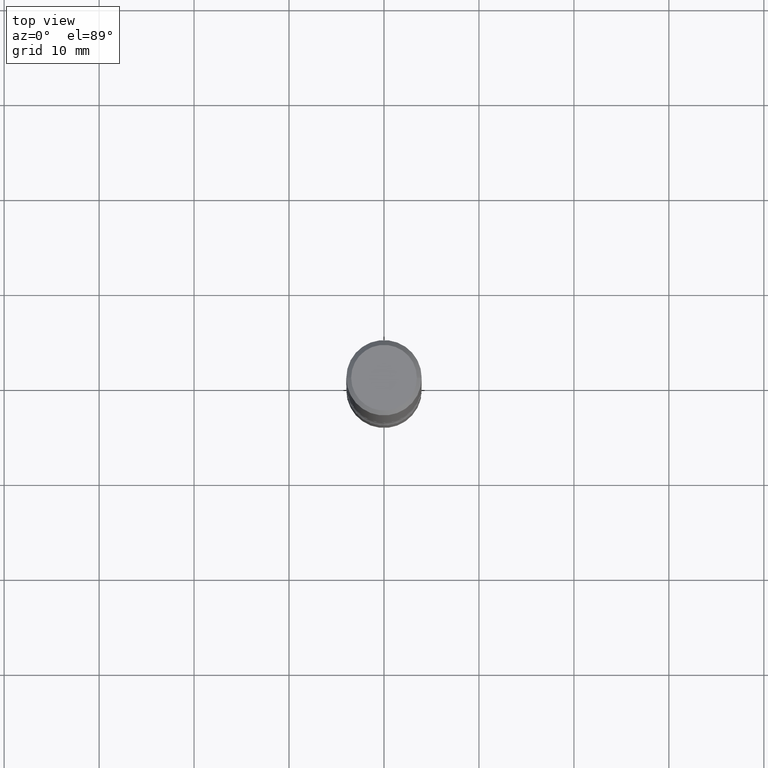
[diagram: clean part render]
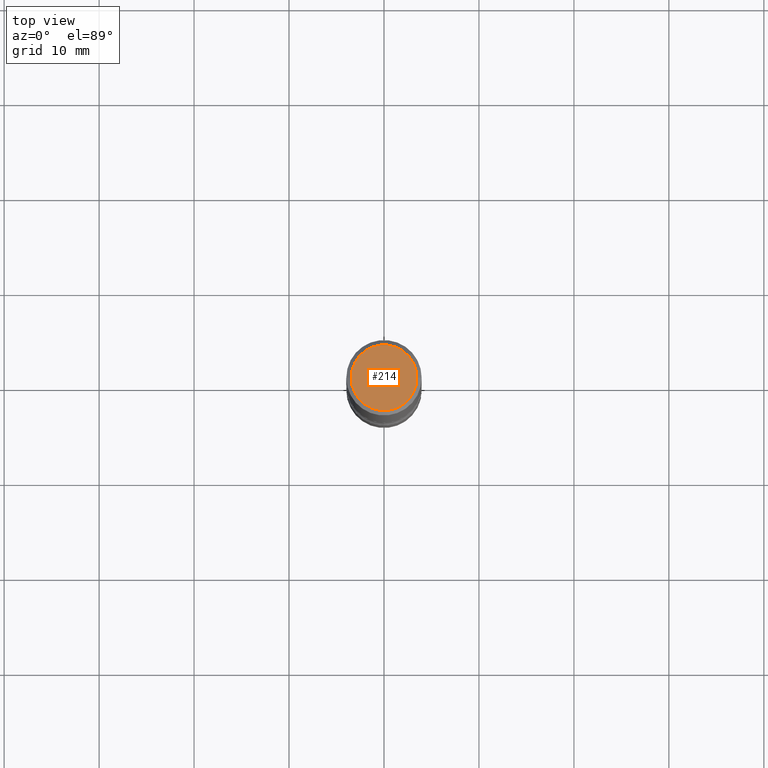
[diagram: same view with one face highlighted and labeled with its STEP entity id]
A machine part, top view. The second image highlights one B-rep face of the part: STEP entity #214.
In plain terms, the highlighted planar face has unit normal (0, -0, -1).
Its self-contained STEP definition (entity closure, byte-faithful):
#21 = CIRCLE ( 'NONE', #327, 0.1362499999999998712 ) ;
#44 = CIRCLE ( 'NONE', #546, 0.1362499999999998712 ) ;
#47 = EDGE_CURVE ( 'NONE', #384, #168, #21, .T. ) ;
#49 = DIRECTION ( 'NONE',  ( -1.000000000000000000, 6.982962677686265922E-15, -4.876176775795935793E-29 ) ) ;
#85 = CARTESIAN_POINT ( 'NONE',  ( 0.000000000000000000, 0.000000000000000000, 0.000000000000000000 ) ) ;
#123 = ORIENTED_EDGE ( 'NONE', *, *, #399, .T. ) ;
#129 = PLANE ( 'NONE',  #520 ) ;
#168 = VERTEX_POINT ( 'NONE', #314 ) ;
#182 = ORIENTED_EDGE ( 'NONE', *, *, #47, .T. ) ;
#190 = CARTESIAN_POINT ( 'NONE',  ( -0.1362499999999998712, 9.863434782231840290E-16, -6.775751096333132877E-30 ) ) ;
#214 = ADVANCED_FACE ( 'NONE', ( #527 ), #129, .F. ) ;
#245 = DIRECTION ( 'NONE',  ( -2.445468806185136597E-29, 3.491481338843145583E-15, 1.000000000000000000 ) ) ;
#248 = EDGE_LOOP ( 'NONE', ( #182, #123 ) ) ;
#302 = CARTESIAN_POINT ( 'NONE',  ( 9.514286648347529716E-16, 0.1362499999999998712, -4.757143324173781621E-16 ) ) ;
#314 = CARTESIAN_POINT ( 'NONE',  ( 0.1362499999999998712, -1.038262645562517138E-15, 6.957025900226689470E-30 ) ) ;
#327 = AXIS2_PLACEMENT_3D ( 'NONE', #85, #477, #410 ) ;
#384 = VERTEX_POINT ( 'NONE', #190 ) ;
#391 = DIRECTION ( 'NONE',  ( 2.438088387897960049E-29, -3.491481338843145188E-15, -1.000000000000000000 ) ) ;
#399 = EDGE_CURVE ( 'NONE', #168, #384, #44, .T. ) ;
#410 = DIRECTION ( 'NONE',  ( 1.000000000000000000, -6.982962677686266711E-15, 4.876176775795936353E-29 ) ) ;
#477 = DIRECTION ( 'NONE',  ( -2.445468806185136597E-29, 3.491481338843145583E-15, 1.000000000000000000 ) ) ;
#520 = AXIS2_PLACEMENT_3D ( 'NONE', #302, #391, #49 ) ;
#527 = FACE_OUTER_BOUND ( 'NONE', #248, .T. ) ;
#540 = CARTESIAN_POINT ( 'NONE',  ( 0.000000000000000000, 0.000000000000000000, 0.000000000000000000 ) ) ;
#546 = AXIS2_PLACEMENT_3D ( 'NONE', #540, #245, #552 ) ;
#552 = DIRECTION ( 'NONE',  ( 1.000000000000000000, -6.982962677686266711E-15, 4.876176775795936353E-29 ) ) ;